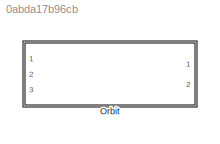
MODEL slx_0abda17b96cb
KIND library
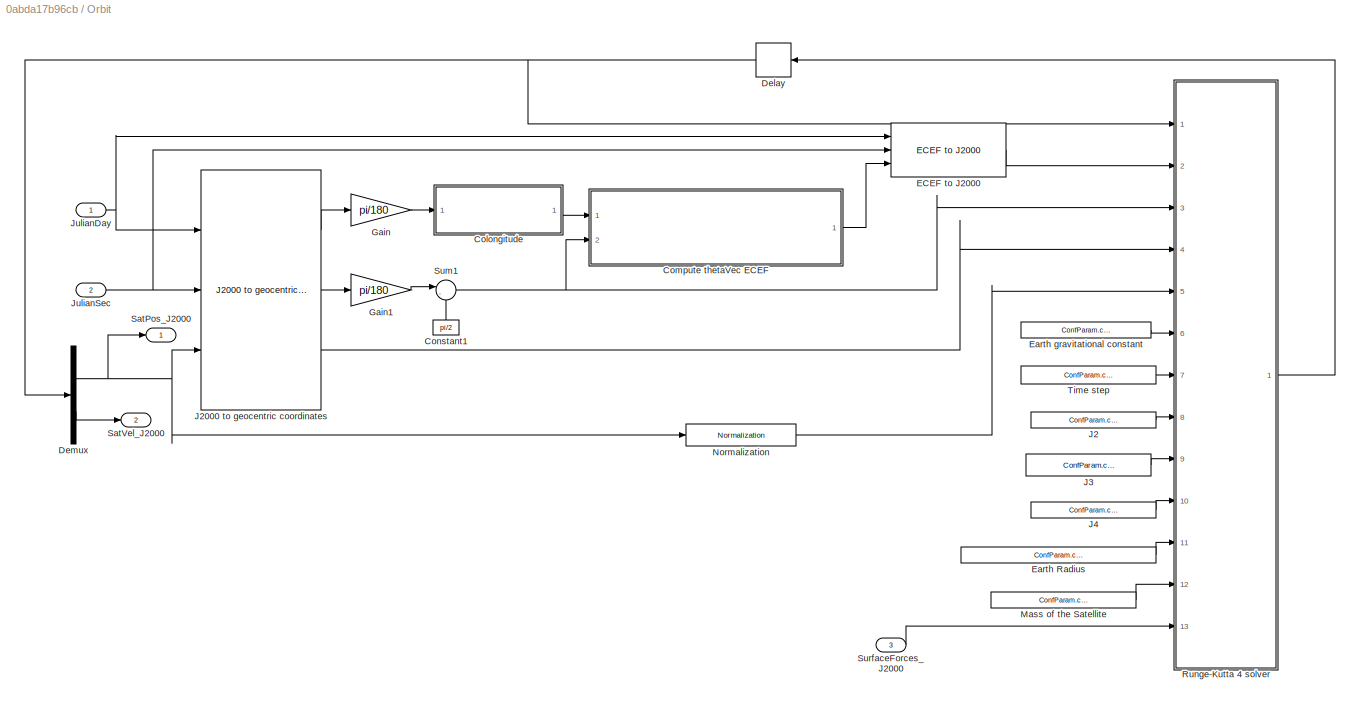
BLOCK [SubSystem] Orbit
  Ports = [3, 2]
  RequestExecContextInheritance = off
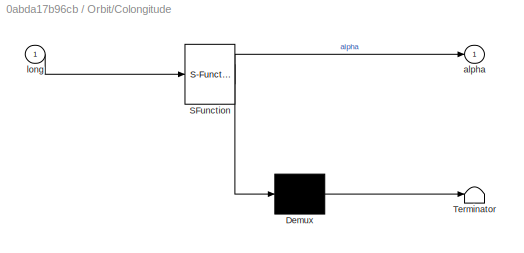
BLOCK [SubSystem] Orbit/Colongitude
  ErrorFcn = Stateflow.Translate.translate
  PermitHierarchicalResolution = ExplicitOnly
  Ports = [1, 1]
  RequestExecContextInheritance = off
  SFBlockType = MATLAB Function
  TreatAsAtomicUnit = on
BLOCK [Demux] Orbit/Colongitude/ Demux 
  Outputs = 1
  Ports = [1, 1]
BLOCK [S-Function] Orbit/Colongitude/ SFunction 
  EnableBusSupport = off
  FunctionName = sf_sfun
  PortCounts = [1 2]
  Ports = [1, 2]
  Tag = Stateflow S-Function Orbit 1
BLOCK [Terminator] Orbit/Colongitude/ Terminator 
BLOCK [Outport] Orbit/Colongitude/alpha
  IconDisplay = Port number
BLOCK [Inport] Orbit/Colongitude/long
  IconDisplay = Port number
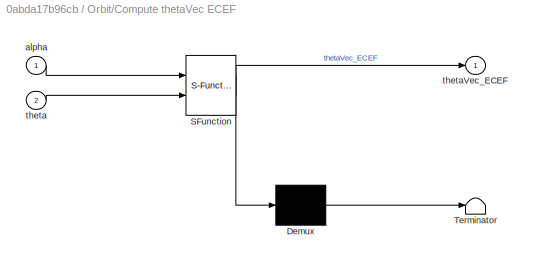
BLOCK [SubSystem] Orbit/Compute thetaVec ECEF
  ErrorFcn = Stateflow.Translate.translate
  PermitHierarchicalResolution = ExplicitOnly
  Ports = [2, 1]
  RequestExecContextInheritance = off
  SFBlockType = MATLAB Function
  TreatAsAtomicUnit = on
BLOCK [Demux] Orbit/Compute thetaVec ECEF/ Demux 
  Outputs = 1
  Ports = [1, 1]
BLOCK [S-Function] Orbit/Compute thetaVec ECEF/ SFunction 
  EnableBusSupport = off
  FunctionName = sf_sfun
  PortCounts = [2 2]
  Ports = [2, 2]
  Tag = Stateflow S-Function Orbit 2
BLOCK [Terminator] Orbit/Compute thetaVec ECEF/ Terminator 
BLOCK [Inport] Orbit/Compute thetaVec ECEF/alpha
  IconDisplay = Port number
BLOCK [Inport] Orbit/Compute thetaVec ECEF/theta
  IconDisplay = Port number
  Port = 2
BLOCK [Outport] Orbit/Compute thetaVec ECEF/thetaVec_ECEF
  IconDisplay = Port number
BLOCK [Constant] Orbit/Constant1
  Value = pi/2
BLOCK [Delay] Orbit/Delay
  DelayLength = 1
  InitialCondition = ConfParam.confOrbit.InitOrbit
  InputPortMap = u0
  Ports = [1, 1]
  SampleTime = ConfParam.confOrbit.dt
BLOCK [Demux] Orbit/Demux
  DisplayOption = bar
  Outputs = 2
  Ports = [1, 2]
BLOCK [Reference] Orbit/ECEF to J2000  REF=ECEFtoJ2000/ECEF to J2000
  Ports = [3, 1]
  SourceBlock = ECEFtoJ2000/ECEF to J2000
  SourceType = SubSystem
BLOCK [Constant] Orbit/Earth Radius
  Value = ConfParam.confConst.EarthEquatorialR
BLOCK [Constant] Orbit/Earth gravitational constant
  Value = ConfParam.confConst.mu
BLOCK [Gain] Orbit/Gain
  Gain = pi/180
  OutDataTypeStr = Inherit: Inherit via internal rule
  ParamDataTypeStr = Inherit: Inherit via internal rule
  SaturateOnIntegerOverflow = off
BLOCK [Gain] Orbit/Gain1
  Gain = pi/180
  OutDataTypeStr = Inherit: Inherit via internal rule
  ParamDataTypeStr = Inherit: Inherit via internal rule
  SaturateOnIntegerOverflow = off
BLOCK [Constant] Orbit/J2
  Value = ConfParam.confConst.J2
BLOCK [Reference] Orbit/J2000 to geocentric coordinates  REF=J2000toGeoc/J2000 to geocentric coordinates
  Ports = [3, 3]
  SourceBlock = J2000toGeoc/J2000 to geocentric coordinates
  SourceType = SubSystem
BLOCK [Constant] Orbit/J3
  Value = ConfParam.confConst.J3
BLOCK [Constant] Orbit/J4
  Value = ConfParam.confConst.J4
BLOCK [Inport] Orbit/JulianDay
  IconDisplay = Port number
BLOCK [Inport] Orbit/JulianSec
  IconDisplay = Port number
  Port = 2
BLOCK [Constant] Orbit/Mass of the Satellite
  Value = ConfParam.confOrbit.mass
BLOCK [Reference] Orbit/Normalization  REF=Normalization/Normalization
  Ports = [1, 1]
  SourceBlock = Normalization/Normalization
  SourceType = SubSystem
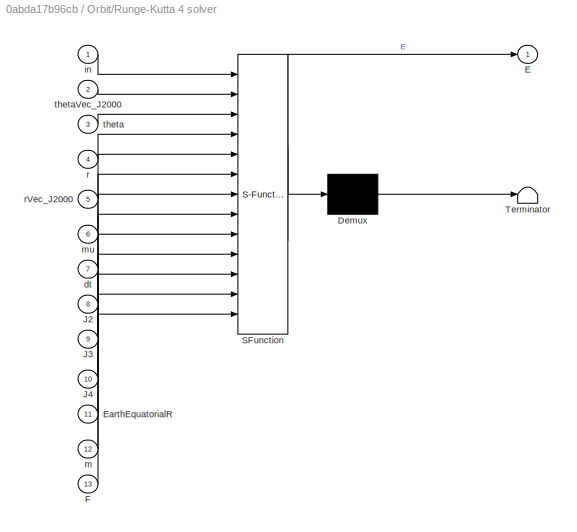
BLOCK [SubSystem] Orbit/Runge-Kutta 4 solver
  ErrorFcn = Stateflow.Translate.translate
  PermitHierarchicalResolution = ExplicitOnly
  Ports = [13, 1]
  RequestExecContextInheritance = off
  SFBlockType = MATLAB Function
  TreatAsAtomicUnit = on
BLOCK [Demux] Orbit/Runge-Kutta 4 solver/ Demux 
  Outputs = 1
  Ports = [1, 1]
BLOCK [S-Function] Orbit/Runge-Kutta 4 solver/ SFunction 
  EnableBusSupport = off
  FunctionName = sf_sfun
  PortCounts = [13 2]
  Ports = [13, 2]
  Tag = Stateflow S-Function Orbit 3
BLOCK [Terminator] Orbit/Runge-Kutta 4 solver/ Terminator 
BLOCK [Outport] Orbit/Runge-Kutta 4 solver/E
  IconDisplay = Port number
BLOCK [Inport] Orbit/Runge-Kutta 4 solver/EarthEquatorialR
  IconDisplay = Port number
  Port = 11
BLOCK [Inport] Orbit/Runge-Kutta 4 solver/F
  IconDisplay = Port number
  Port = 13
BLOCK [Inport] Orbit/Runge-Kutta 4 solver/J2
  IconDisplay = Port number
  Port = 8
BLOCK [Inport] Orbit/Runge-Kutta 4 solver/J3
  IconDisplay = Port number
  Port = 9
BLOCK [Inport] Orbit/Runge-Kutta 4 solver/J4
  IconDisplay = Port number
  Port = 10
BLOCK [Inport] Orbit/Runge-Kutta 4 solver/dt
  IconDisplay = Port number
  Port = 7
BLOCK [Inport] Orbit/Runge-Kutta 4 solver/in
  IconDisplay = Port number
BLOCK [Inport] Orbit/Runge-Kutta 4 solver/m
  IconDisplay = Port number
  Port = 12
BLOCK [Inport] Orbit/Runge-Kutta 4 solver/mu
  IconDisplay = Port number
  Port = 6
BLOCK [Inport] Orbit/Runge-Kutta 4 solver/r
  IconDisplay = Port number
  Port = 4
BLOCK [Inport] Orbit/Runge-Kutta 4 solver/rVec_J2000
  IconDisplay = Port number
  Port = 5
BLOCK [Inport] Orbit/Runge-Kutta 4 solver/theta
  IconDisplay = Port number
  Port = 3
BLOCK [Inport] Orbit/Runge-Kutta 4 solver/thetaVec_J2000
  IconDisplay = Port number
  Port = 2
BLOCK [Outport] Orbit/SatPos_J2000
  IconDisplay = Port number
BLOCK [Outport] Orbit/SatVel_J2000
  IconDisplay = Port number
  Port = 2
BLOCK [Sum] Orbit/Sum1
  IconShape = round
  InputSameDT = off
  Inputs = |-+
  OutDataTypeStr = Inherit: Inherit via internal rule
  Ports = [2, 1]
  SaturateOnIntegerOverflow = off
BLOCK [Inport] Orbit/SurfaceForces_J2000
  IconDisplay = Port number
  Port = 3
BLOCK [Constant] Orbit/Time step
  Value = ConfParam.confOrbit.dt
LINE Orbit/Colongitude:1 -> Orbit/Compute thetaVec ECEF:1
LINE Orbit/Compute thetaVec ECEF:1 -> Orbit/ECEF to J2000:3
LINE Orbit/Constant1:1 -> Orbit/Sum1:2
NET Orbit/Delay:1 -> Orbit/Demux:1, Orbit/Runge-Kutta 4 solver:1
NET Orbit/Demux:1 -> Orbit/J2000 to geocentric coordinates:3, Orbit/Normalization:1, Orbit/SatPos_J2000:1
LINE Orbit/Demux:2 -> Orbit/SatVel_J2000:1
LINE Orbit/ECEF to J2000:1 -> Orbit/Runge-Kutta 4 solver:2
LINE Orbit/Earth Radius:1 -> Orbit/Runge-Kutta 4 solver:11
LINE Orbit/Earth gravitational constant:1 -> Orbit/Runge-Kutta 4 solver:6
LINE Orbit/Gain1:1 -> Orbit/Sum1:1
LINE Orbit/Gain:1 -> Orbit/Colongitude:1
LINE Orbit/J2000 to geocentric coordinates:1 -> Orbit/Gain:1
LINE Orbit/J2000 to geocentric coordinates:2 -> Orbit/Gain1:1
LINE Orbit/J2000 to geocentric coordinates:3 -> Orbit/Runge-Kutta 4 solver:4
LINE Orbit/J2:1 -> Orbit/Runge-Kutta 4 solver:8
LINE Orbit/J3:1 -> Orbit/Runge-Kutta 4 solver:9
LINE Orbit/J4:1 -> Orbit/Runge-Kutta 4 solver:10
NET Orbit/JulianDay:1 -> Orbit/ECEF to J2000:1, Orbit/J2000 to geocentric coordinates:1
NET Orbit/JulianSec:1 -> Orbit/ECEF to J2000:2, Orbit/J2000 to geocentric coordinates:2
LINE Orbit/Mass of the Satellite:1 -> Orbit/Runge-Kutta 4 solver:12
LINE Orbit/Normalization:1 -> Orbit/Runge-Kutta 4 solver:5
LINE Orbit/Runge-Kutta 4 solver:1 -> Orbit/Delay:1
NET Orbit/Sum1:1 -> Orbit/Compute thetaVec ECEF:2, Orbit/Runge-Kutta 4 solver:3
LINE Orbit/SurfaceForces_J2000:1 -> Orbit/Runge-Kutta 4 solver:13
LINE Orbit/Time step:1 -> Orbit/Runge-Kutta 4 solver:7
note: NET lines group one-source signal fan-out (src -> all destinations, sorted); 1:1 wires keep LINE
CHART Orbit/Colongitude states=1 transitions=1
  STATE_LABEL 'eML_blk_kernel()'
  STATE_LABEL 'SCRIPT:\nfunction alpha = colongitude(long)\n    if long<0\n        alpha=2*pi+long;\n    else\n        alpha=long;\n    end\nend'
CHART Orbit/Compute thetaVec ECEF states=1 transitions=1
  STATE_LABEL 'eML_blk_kernel()'
  STATE_LABEL 'SCRIPT:\nfunction thetaVec_ECEF = ComputeThetaVec(alpha, theta)\n\n    i=[1; 0; 0]; j=[0; 1; 0]; k=[0; 0; 1];\n    \n    thetaVec_ECEF = cos(theta)*cos(alpha)*i+cos(theta)*sin(alpha)*j-sin(theta)*k;\n    \nend'
CHART Orbit/Runge-Kutta 4 solver states=1 transitions=1
  STATE_LABEL 'eML_blk_kernel()'
  STATE_LABEL 'SCRIPT:\nfunction E=RK4(in, thetaVec_J2000, theta, r, rVec_J2000, mu, dt, J2, J3, J4, EarthEquatorialR, m, F)\n    % Runge-Kutta 4 solver      \n    E=in;\n    Ei=in;\n    \n    K1=DifferentialEq(Ei, thetaVec_J2000, theta, rVec_J2000, r, mu, J2, J3, J4, EarthEquatorialR, m, F);\n    \n    Ei=E+dt/2*K1;\n    K2=DifferentialEq(Ei, thetaVec_J2000, theta, rVec_J2000, r, mu, J2, J3, J4, EarthEquatorialR, m, F);...<+297ch>'
